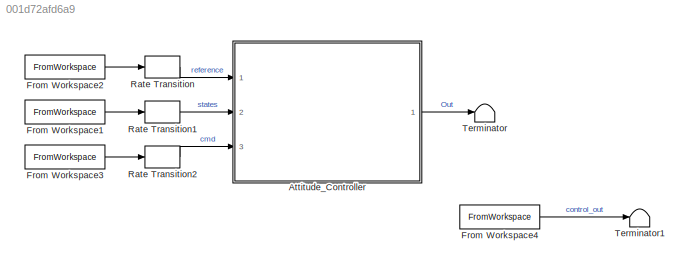
MODEL slx_001d72afd6a9
KIND model
CONFIG AbsTol = auto
CONFIG EnableMultiTasking = off
CONFIG FixedStep = auto
CONFIG MaxStep = auto
CONFIG MinStep = auto
CONFIG RelTol = 1e-3
CONFIG SampleTimeConstraint = Unconstrained
CONFIG Solver = VariableStepAuto
CONFIG SolverName = VariableStepAuto
CONFIG StartTime = 0.0
CONFIG StopTime = 10.0
BLOCK [ModelReference] Attitude_Controller
  ModelNameDialog = PID.slx
  ModelReferenceVersion = 1.58
  Ports = [3, 1]
BLOCK [FromWorkspace] From Workspace1
  Interpolate = off
  OutDataTypeStr = Bus: States
  OutputAfterFinalValue = Holding final value
  VariableName = states
  ZeroCross = on
BLOCK [FromWorkspace] From Workspace2
  Interpolate = off
  OutDataTypeStr = Bus: Reference
  OutputAfterFinalValue = Holding final value
  VariableName = reference
  ZeroCross = on
BLOCK [FromWorkspace] From Workspace3
  Interpolate = off
  OutDataTypeStr = Bus: Command
  OutputAfterFinalValue = Holding final value
  VariableName = command
  ZeroCross = on
BLOCK [FromWorkspace] From Workspace4
  Commented = on
  Interpolate = off
  OutDataTypeStr = Bus: Control_Output
  OutputAfterFinalValue = Holding final value
  VariableName = control_out
  ZeroCross = on
BLOCK [RateTransition] Rate Transition
  OutPortSampleTime = 0.004
BLOCK [RateTransition] Rate Transition1
  OutPortSampleTime = 0.004
BLOCK [RateTransition] Rate Transition2
  OutPortSampleTime = 0.004
BLOCK [Terminator] Terminator
BLOCK [Terminator] Terminator1
  Commented = on
LINE Attitude_Controller:1 -> Terminator:1
LINE From Workspace1:1 -> Rate Transition1:1
LINE From Workspace2:1 -> Rate Transition:1
LINE From Workspace3:1 -> Rate Transition2:1
LINE From Workspace4:1 -> Terminator1:1
LINE Rate Transition1:1 -> Attitude_Controller:2
LINE Rate Transition2:1 -> Attitude_Controller:3
LINE Rate Transition:1 -> Attitude_Controller:1
